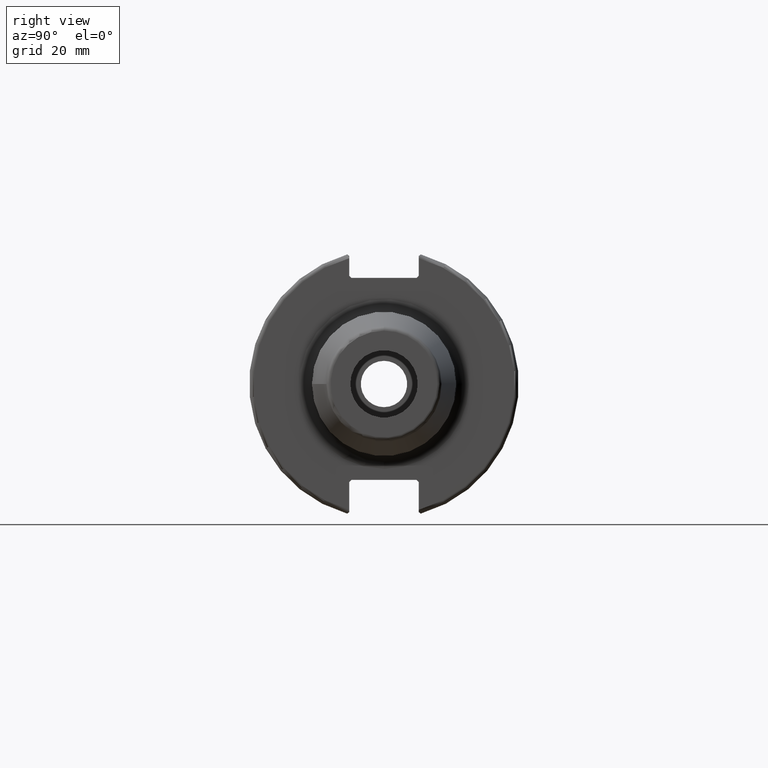
[diagram: clean part render]
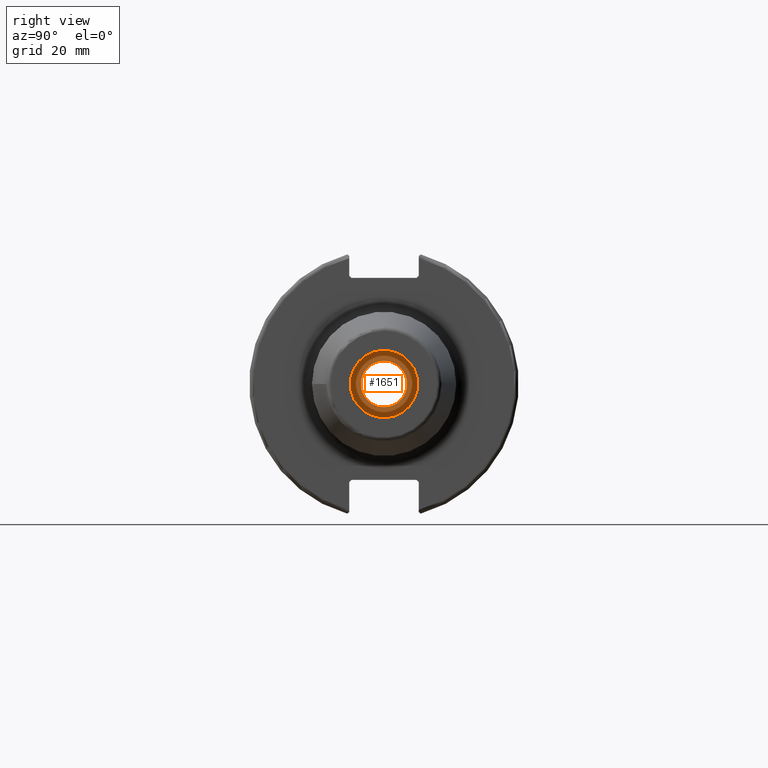
[diagram: same view with one face highlighted and labeled with its STEP entity id]
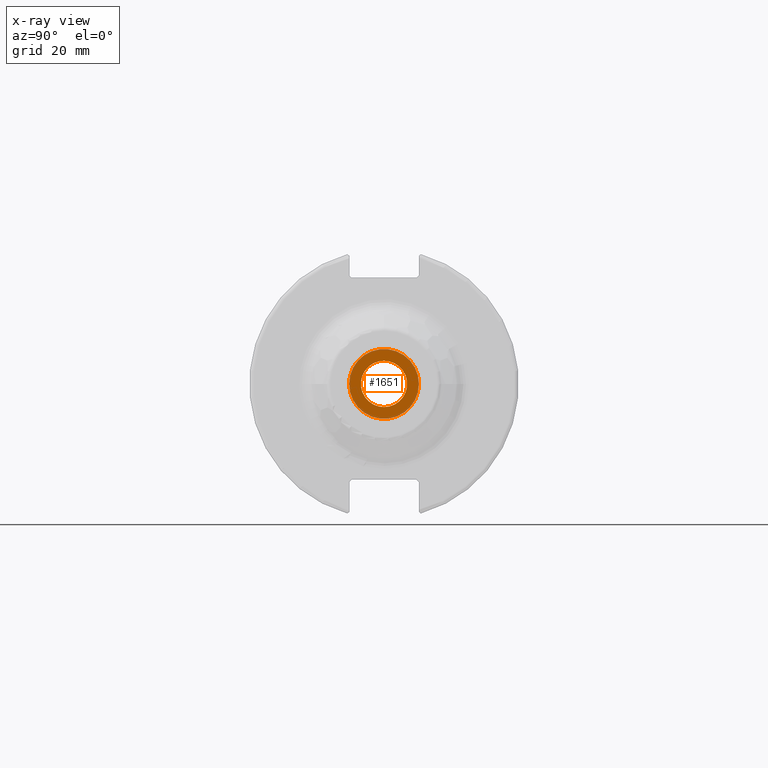
[diagram: x-ray of the same camera — body ghosted, the highlighted face saturated]
A machine part, right view. The second image highlights one B-rep face of the part: STEP entity #1651.
The next image is the same camera in x-ray: the body ghosted, the highlighted face saturated — about 13% of this face is hidden behind the body in this view.
In plain terms, the highlighted planar face has unit normal (1, 0, 0).
Its self-contained STEP definition (entity closure, byte-faithful):
#110=FACE_BOUND('',#460,.T.);
#126=PLANE('',#1784);
#370=FACE_OUTER_BOUND('',#459,.T.);
#459=EDGE_LOOP('',(#1165,#1166));
#460=EDGE_LOOP('',(#1167,#1168));
#570=CIRCLE('',#1775,5.4585);
#571=CIRCLE('',#1776,5.4585);
#575=CIRCLE('',#1781,8.23749999999999);
#576=CIRCLE('',#1782,8.23749999999999);
#684=VERTEX_POINT('',#2543);
#685=VERTEX_POINT('',#2544);
#690=VERTEX_POINT('',#2556);
#691=VERTEX_POINT('',#2558);
#873=EDGE_CURVE('',#684,#685,#570,.T.);
#874=EDGE_CURVE('',#685,#684,#571,.T.);
#880=EDGE_CURVE('',#691,#690,#575,.T.);
#881=EDGE_CURVE('',#690,#691,#576,.T.);
#1165=ORIENTED_EDGE('',*,*,#880,.T.);
#1166=ORIENTED_EDGE('',*,*,#881,.T.);
#1167=ORIENTED_EDGE('',*,*,#873,.T.);
#1168=ORIENTED_EDGE('',*,*,#874,.T.);
#1651=ADVANCED_FACE('',(#370,#110),#126,.T.);
#1775=AXIS2_PLACEMENT_3D('',#2545,#2025,#2026);
#1776=AXIS2_PLACEMENT_3D('',#2546,#2027,#2028);
#1781=AXIS2_PLACEMENT_3D('',#2559,#2039,#2040);
#1782=AXIS2_PLACEMENT_3D('',#2560,#2041,#2042);
#1784=AXIS2_PLACEMENT_3D('',#2562,#2045,#2046);
#2025=DIRECTION('center_axis',(-1.,0.,0.));
#2026=DIRECTION('ref_axis',(0.,0.,-1.));
#2027=DIRECTION('center_axis',(-1.,0.,0.));
#2028=DIRECTION('ref_axis',(0.,0.,-1.));
#2039=DIRECTION('center_axis',(1.,0.,0.));
#2040=DIRECTION('ref_axis',(0.,0.,-1.));
#2041=DIRECTION('center_axis',(1.,0.,0.));
#2042=DIRECTION('ref_axis',(0.,0.,-1.));
#2045=DIRECTION('center_axis',(1.,0.,0.));
#2046=DIRECTION('ref_axis',(0.,0.,-1.));
#2543=CARTESIAN_POINT('',(28.,0.,-5.4585));
#2544=CARTESIAN_POINT('',(28.,-6.68473455314583E-16,5.4585));
#2545=CARTESIAN_POINT('Origin',(28.,0.,0.));
#2546=CARTESIAN_POINT('Origin',(28.,0.,0.));
#2556=CARTESIAN_POINT('',(28.,-8.23749999999999,-1.00880280079763E-15));
#2558=CARTESIAN_POINT('',(28.,8.23749999999999,0.));
#2559=CARTESIAN_POINT('Origin',(28.,0.,0.));
#2560=CARTESIAN_POINT('Origin',(28.,0.,0.));
#2562=CARTESIAN_POINT('Origin',(28.,-2.07269179399154E-14,0.));